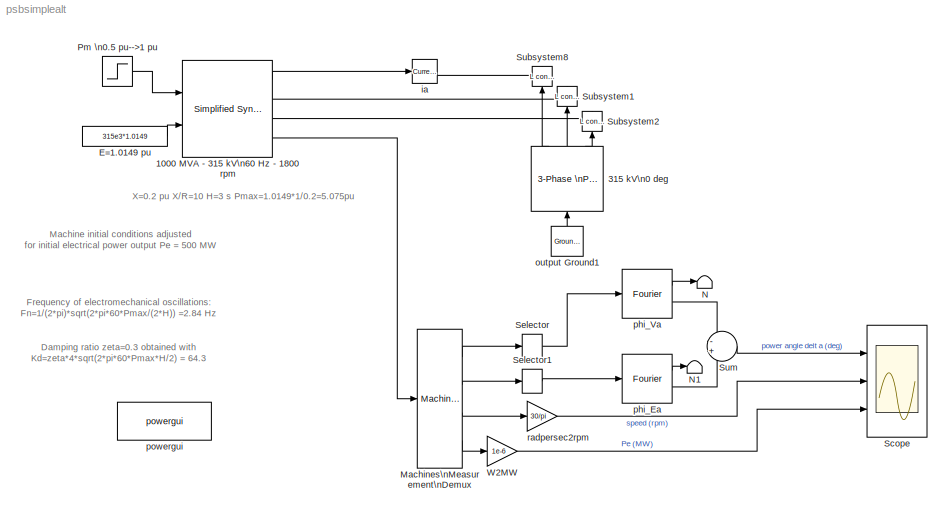
MODEL psbsimplealt
KIND model
BLOCK [Reference] 1000 MVA - 315 kV\n60 Hz - 1800 rpm  REF=powerlib2/Machines/Simplified Synchronous \nMachine SI Units
  LoadFlowParameters = [1 500000000 0 0 0]
  PSBOutputType = 1110
  Ports = [2, 4]
  SourceBlock = powerlib2/Machines/Simplified Synchronous \nMachine SI Units
  SourceType = Simplified Synchronous Machine
  Tag = PoWeRsYsTeMbLoCk
  conType = 3-wire Y
  iounits = 1
  x1 = [ 1000e6, 315e3, 60 ]
  x2 = [168870,  64.3,  2]
  x3 = [ 99.225*0.02 ,99.225/(2*pi*60)*0.2 ]
  x4 = [0 5.65442 1296.03 1296.03 1296.03 0 -120 120]
BLOCK [Reference] 315 kV\n0 deg  REF=powerlib2/Electrical\nSources/3-Phase \nProgrammable \nVoltage Source
  HarmonicGeneration = off
  Par_HarmoA_pu = [3 0.2 -25 0]
  Par_HarmoB_pu = [2 0.15  35 2]
  Par_Timing_Harmo = [0.05  3]
  Par_Timing_Variation = [0.1 1.2]
  Par_Vps_LLrms = [315e3 0  60]
  Ports = [1, 3]
  SinglePhase = off
  SourceBlock = powerlib2/Electrical\nSources/3-Phase \nProgrammable \nVoltage Source
  SourceType = 3-phase Programmable Voltage Source
  VariationEntity = None
  VariationFreq = 2
  VariationMag = 0.3
  VariationRate = 10
  VariationStep = -0.5
  VariationType = Step
  Xtime = [0 0.1 0.15 0.2]
  Yampli = [1 0.8 1.2 1.0]
BLOCK [Constant] E=1.0149 pu
  Value = 315e3*1.0149
BLOCK [Reference] Machines\nMeasurement\nDemux  REF=powerlib2/Machines/Machines\nMeasurement\nDemux
  Ports = [1, 4]
  SourceBlock = powerlib2/Machines/Machines\nMeasurement\nDemux
  SourceType = Machine measurements
  asm1 = on
  asm10 = on
  asm11 = on
  asm2 = on
  asm3 = on
  asm4 = on
  asm5 = on
  asm6 = on
  asm7 = on
  asm8 = on
  asm9 = on
  lastType = 1
  machType = Simplified synchronous
  pmsm1 = on
  pmsm2 = on
  pmsm3 = on
  pmsm4 = on
  pmsm5 = on
  pmsm6 = on
  sm1 = on
  sm10 = on
  sm11 = off
  sm115 = off
  sm12 = off
  sm13 = off
  sm14 = off
  sm2 = on
  sm3 = on
  sm4 = on
  sm5 = on
  sm6 = on
  sm7 = on
  sm8 = on
  sm9 = on
  ssm1 = off
  ssm2 = on
  ssm3 = on
  ssm4 = off
  ssm5 = on
  ssm6 = on
BLOCK [Terminator] N
BLOCK [Terminator] N1
BLOCK [Step] Pm \n0.5 pu-->1 pu
  After = 1000e6
  Before = 505e6
  SampleTime = 0
  Time = 0.5
BLOCK [Scope] Scope
  DataFormat = Structure
  LimitDataPoints = off
  NumInputPorts = 3
  Ports = [3]
  SaveName = delta
  SaveToWorkspace = on
  YMax = 14~1806~1200
  YMin = 5~1797~500
  ZoomMode = xonly
BLOCK [Selector] Selector
  InputPortWidth = 3
  Ports = [1, 1]
BLOCK [Selector] Selector1
  InputPortWidth = 3
  Ports = [1, 1]
BLOCK [Reference] Subsystem1  REF=powerlib2/Connectors/L connector
  Ports = [1, 0, 1]
  SourceBlock = powerlib2/Connectors/L connector
  SourceType = Bus Bar
  Tag = PoWeRsYsTeMbLoCk
BLOCK [Reference] Subsystem2  REF=powerlib2/Connectors/L connector
  Ports = [1, 0, 1]
  SourceBlock = powerlib2/Connectors/L connector
  SourceType = Bus Bar
  Tag = PoWeRsYsTeMbLoCk
BLOCK [Reference] Subsystem8  REF=powerlib2/Connectors/L connector
  Ports = [1, 0, 1]
  SourceBlock = powerlib2/Connectors/L connector
  SourceType = Bus Bar
  Tag = PoWeRsYsTeMbLoCk
BLOCK [Sum] Sum
  IconShape = round
  Inputs = -+
  Ports = [2, 1]
BLOCK [Gain] W2MW
  Gain = 1e-6
BLOCK [Reference] ia  REF=powerlib2/Measurements/Current Measurement
  OutputType = Magnitude
  PSBOutputType = 01
  PSBequivalent = 0
  PhasorSimulation = off
  Ports = [1, 2]
  SourceBlock = powerlib2/Measurements/Current Measurement
  SourceType = Current Measurement
  Tag = PoWeRsYsTeMmEaSuReMeNt
BLOCK [Reference] output Ground1  REF=powerlib2/Connectors/Ground (output)
  PSBOutputType = 1
  Ports = [0, 1]
  SourceBlock = powerlib2/Connectors/Ground (output)
  SourceType = Ground
  Tag = PoWeRsYsTeMbLoCk
BLOCK [Reference] phi_Ea  REF=powerlib_extras/Measurements/Fourier
  Ports = [1, 2]
  SourceBlock = powerlib_extras/Measurements/Fourier
  SourceType = Fourier analyser
  f1 = 60
  n = 1
BLOCK [Reference] phi_Va  REF=powerlib_extras/Measurements/Fourier
  Ports = [1, 2]
  SourceBlock = powerlib_extras/Measurements/Fourier
  SourceType = Fourier analyser
  f1 = 60
  n = 1
BLOCK [Reference] powergui  REF=powerlib2/powergui
  DisplayStyle = off
  Frange = [0:2:500]
  FreqAxis = off
  MaxFrequency = 1000
  Ports = []
  RmsSteady = 1
  SourceBlock = powerlib2/powergui
  SourceType = PSB option menu block
  StartTime = 0.0
  Ts = 0
  Xlog = off
  Ylog = off
  ZoomFFT = on
  cycles = 1
  display = off
  echomessages = off
  frequency = 60
  frequencyindice = 60
  frequencyindicesteady = 1
  fundamental = 60
  methode = off
  save = off
  variable = ZData
BLOCK [Gain] radpersec2rpm
  Gain = 30/pi
ANNOTATION (root): Damping ratio zeta=0.3 obtained with\nKd=zeta*4*sqrt(2*pi*60*Pmax*H/2) = 64.3
ANNOTATION (root): Frequency of electromechanical oscillations:\nFn=1/(2*pi)*sqrt(2*pi*60*Pmax/(2*H)) =2.84 Hz
ANNOTATION (root): Machine initial conditions adjusted \nfor initial electrical power output Pe = 500 MW
ANNOTATION (root): X=0.2 pu X/R=10 H=3 s Pmax=1.0149*1/0.2=5.075pu
LINE 1000 MVA - 315 kV\n60 Hz - 1800 rpm:1 -> ia:1
LINE 1000 MVA - 315 kV\n60 Hz - 1800 rpm:2 -> Subsystem1:enable
LINE 1000 MVA - 315 kV\n60 Hz - 1800 rpm:3 -> Subsystem2:enable
LINE 1000 MVA - 315 kV\n60 Hz - 1800 rpm:4 -> Machines\nMeasurement\nDemux:1
LINE 315 kV\n0 deg:1 -> Subsystem8:1
LINE 315 kV\n0 deg:2 -> Subsystem1:1
LINE 315 kV\n0 deg:3 -> Subsystem2:1
LINE E=1.0149 pu:1 -> 1000 MVA - 315 kV\n60 Hz - 1800 rpm:2
LINE Machines\nMeasurement\nDemux:1 -> Selector:1
LINE Machines\nMeasurement\nDemux:2 -> Selector1:1
LINE Machines\nMeasurement\nDemux:3 -> radpersec2rpm:1
LINE Machines\nMeasurement\nDemux:4 -> W2MW:1
LINE Pm \n0.5 pu-->1 pu:1 -> 1000 MVA - 315 kV\n60 Hz - 1800 rpm:1
LINE Selector1:1 -> phi_Ea:1
LINE Selector:1 -> phi_Va:1
LINE Sum:1 -> Scope:1
LINE W2MW:1 -> Scope:3
LINE ia:2 -> Subsystem8:enable
LINE output Ground1:1 -> 315 kV\n0 deg:1
LINE phi_Ea:1 -> N1:1
LINE phi_Ea:2 -> Sum:2
LINE phi_Va:1 -> N:1
LINE phi_Va:2 -> Sum:1
LINE radpersec2rpm:1 -> Scope:2
